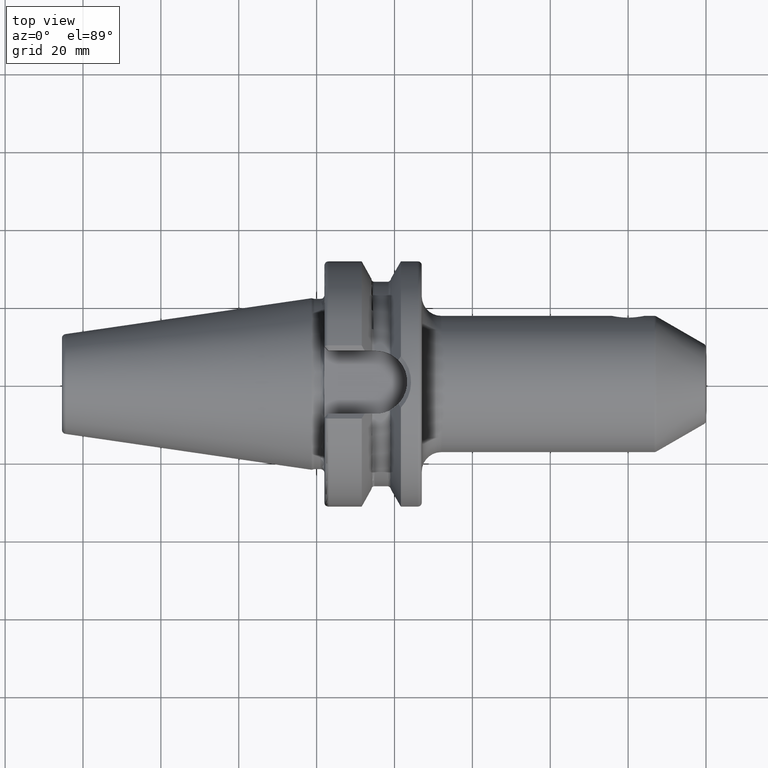
[diagram: clean part render]
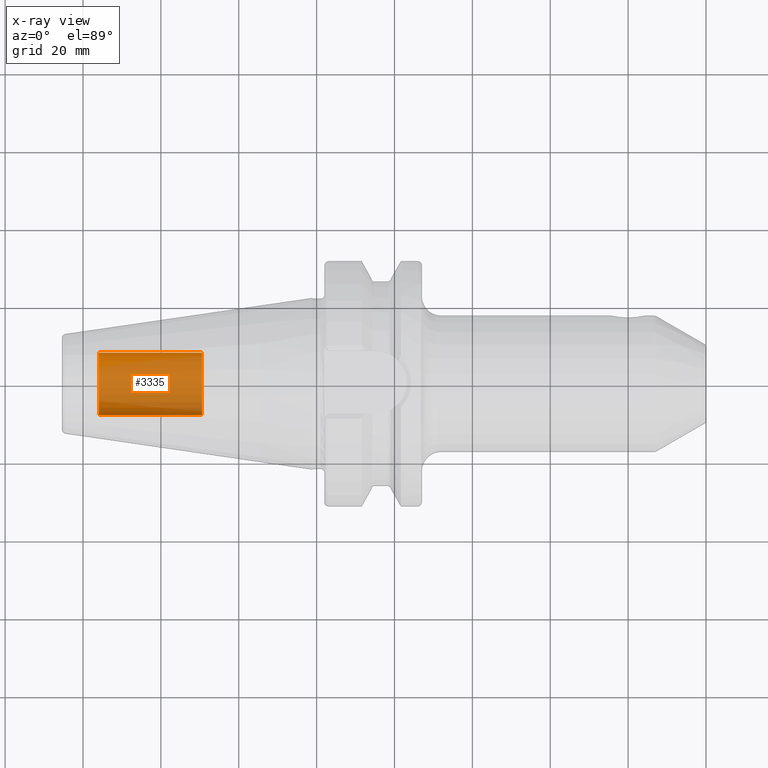
[diagram: x-ray — body ghosted, one internal face saturated and labeled with its STEP entity id]
A machine part, top view, then the same camera in x-ray: the body is ghosted and one INTERNAL B-rep face — a face not visible from any outside direction — is saturated and labeled: STEP entity #3335.
In plain terms, the highlighted cylindrical surface (edge-blend (fillet) strip) has radius 8.0028 mm, axis along (1, 0, 0).
Its self-contained STEP definition (entity closure, byte-faithful):
#3270=CARTESIAN_POINT('',(-5.595E1,0.E0,0.E0));
#3271=DIRECTION('',(-1.E0,0.E0,0.E0));
#3272=DIRECTION('',(0.E0,1.E0,0.E0));
#3273=AXIS2_PLACEMENT_3D('',#3270,#3271,#3272);
#3275=DIRECTION('',(1.E0,0.E0,0.E0));
#3276=VECTOR('',#3275,2.655E1);
#3277=CARTESIAN_POINT('',(-5.595E1,-8.00275E0,0.E0));
#3278=LINE('',#3277,#3276);
#3284=DIRECTION('',(1.E0,0.E0,0.E0));
#3285=VECTOR('',#3284,2.655E1);
#3286=CARTESIAN_POINT('',(-5.595E1,8.00275E0,0.E0));
#3287=LINE('',#3286,#3285);
#3293=CARTESIAN_POINT('',(-2.94E1,0.E0,0.E0));
#3294=DIRECTION('',(1.E0,0.E0,0.E0));
#3295=DIRECTION('',(0.E0,-1.E0,0.E0));
#3296=AXIS2_PLACEMENT_3D('',#3293,#3294,#3295);
#3308=CARTESIAN_POINT('',(-5.595E1,8.00275E0,0.E0));
#3309=CARTESIAN_POINT('',(-5.595E1,-8.00275E0,0.E0));
#3310=VERTEX_POINT('',#3308);
#3311=VERTEX_POINT('',#3309);
#3312=CARTESIAN_POINT('',(-2.94E1,8.00275E0,0.E0));
#3313=CARTESIAN_POINT('',(-2.94E1,-8.00275E0,0.E0));
#3314=VERTEX_POINT('',#3312);
#3315=VERTEX_POINT('',#3313);
#3320=CARTESIAN_POINT('',(-5.595E1,0.E0,0.E0));
#3321=DIRECTION('',(1.E0,0.E0,0.E0));
#3322=DIRECTION('',(0.E0,1.E0,0.E0));
#3323=AXIS2_PLACEMENT_3D('',#3320,#3321,#3322);
#3324=CYLINDRICAL_SURFACE('',#3323,8.00275E0);
#3326=ORIENTED_EDGE('',*,*,#3325,.T.);
#3328=ORIENTED_EDGE('',*,*,#3327,.T.);
#3330=ORIENTED_EDGE('',*,*,#3329,.T.);
#3332=ORIENTED_EDGE('',*,*,#3331,.F.);
#3333=EDGE_LOOP('',(#3326,#3328,#3330,#3332));
#3334=FACE_OUTER_BOUND('',#3333,.F.);
#3335=ADVANCED_FACE('',(#3334),#3324,.T.);
#3274=CIRCLE('',#3273,8.00275E0);
#3297=CIRCLE('',#3296,8.00275E0);
#3325=EDGE_CURVE('',#3310,#3311,#3274,.T.);
#3327=EDGE_CURVE('',#3311,#3315,#3278,.T.);
#3329=EDGE_CURVE('',#3315,#3314,#3297,.T.);
#3331=EDGE_CURVE('',#3310,#3314,#3287,.T.);